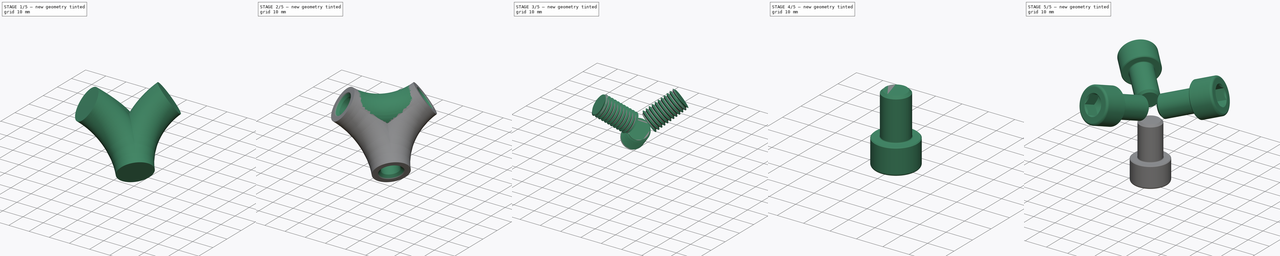
[diagram: build sequence overview — one tinted view per stage of 5, left to right]
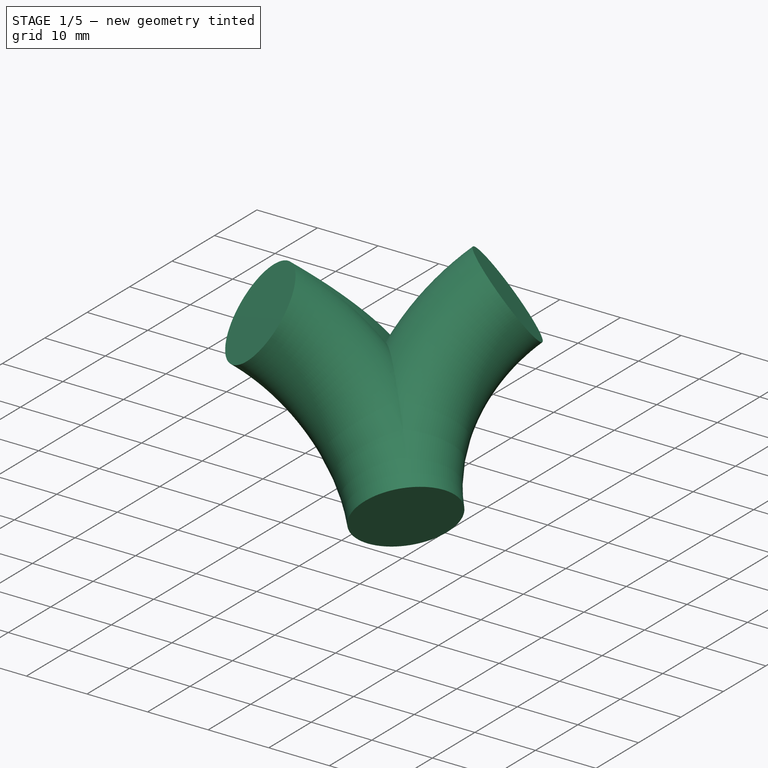
[diagram: stage 1 of 5 — iso view after this stage's code; geometry added in this stage tinted green]
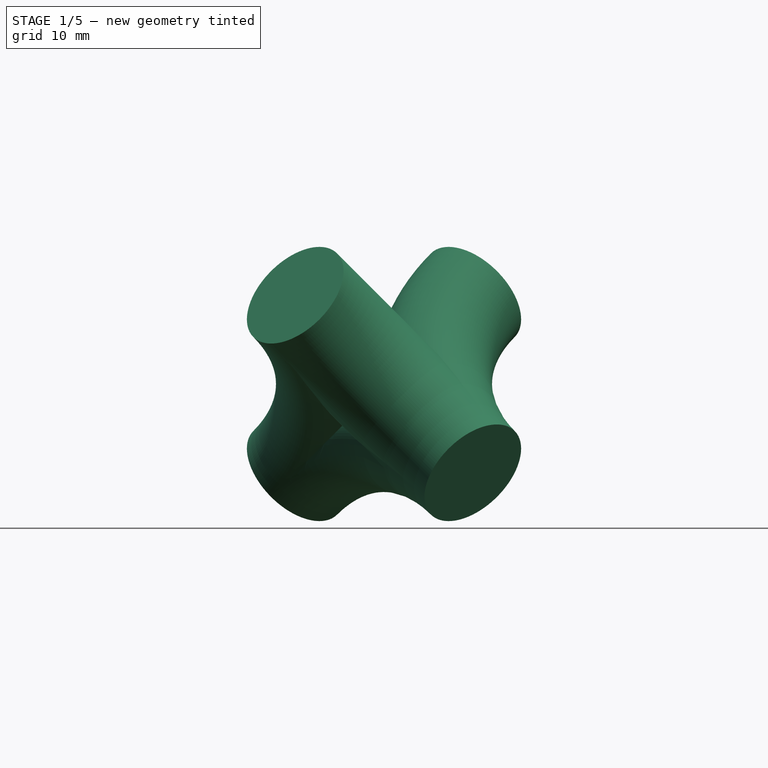
[diagram: stage 1 of 5 — front view after this stage's code; geometry added in this stage tinted green]
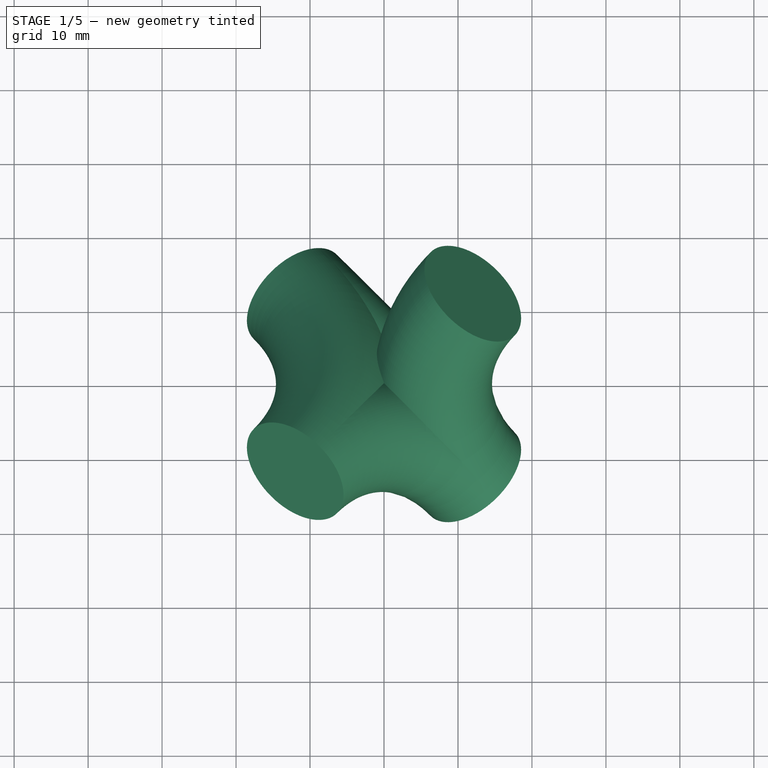
[diagram: stage 1 of 5 — top view after this stage's code; geometry added in this stage tinted green]
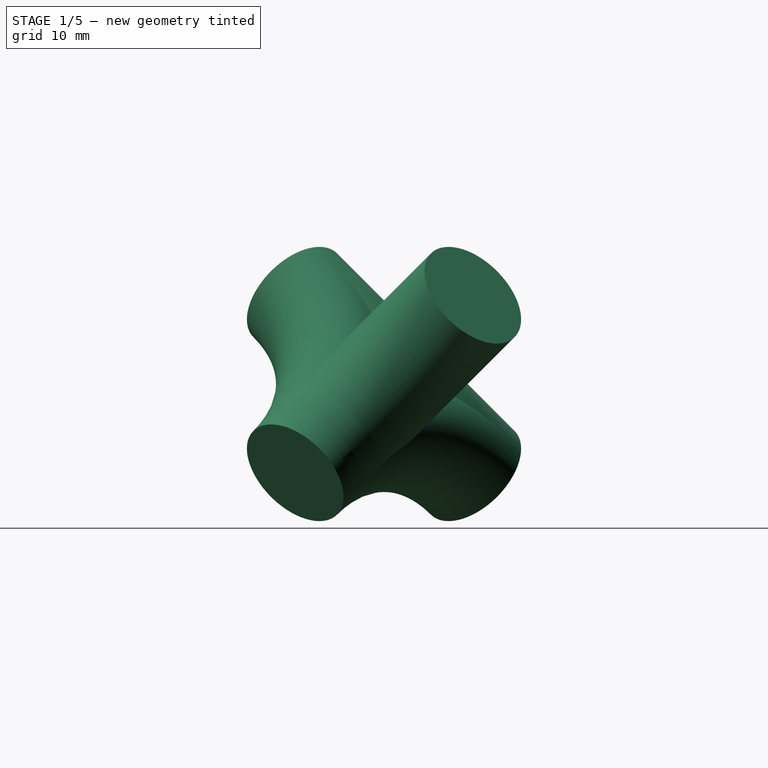
[diagram: stage 1 of 5 — right view after this stage's code; geometry added in this stage tinted green]
FCSTD DOCUMENT  (FreeCAD 0.20R25947 +3 (Git))
Label: Tetraederstern_mit-Gewinde
License: All rights reserved
LicenseURL: http://de.wikipedia.org/wiki/Alle_Rechte_vorbehalten
objects: Part::FeaturePython×8, PartDesign::Point×5, Sketcher::SketchObject×5, PartDesign::Plane×3, PartDesign::PolarPattern×3, PartDesign::Line×2, PartDesign::AdditivePipe×2, PartDesign::Hole×2, PartDesign::Body×1, Part::MultiFuse×1, Part::Cut×1
note: 37 computed .brp shape members not serialized (recipe doc carries the construction recipe); baked Part::Feature solids carry a one-line shape summary decoded from their .brp

FEATURE [PartDesign::Point] DatumPoint
  AttacherType = Attacher::AttachEnginePoint
  AttachmentOffset = pos=(12,12,12) rot=(0,0,1;0rad)
  MapMode = 32
  Placement = pos=(12,12,12) rot=(0,0,1;0rad)
  Support = -> [XY_Plane]
FEATURE [PartDesign::Point] DatumPoint001
  AttacherType = Attacher::AttachEnginePoint
  MapMode = 32
  Support = -> [XY_Plane]
FEATURE [PartDesign::Point] DatumPoint002
  AttacherType = Attacher::AttachEnginePoint
  AttachmentOffset = pos=(-12,-12,12) rot=(0,0,1;0rad)
  MapMode = 32
  Placement = pos=(-12,-12,12) rot=(0,0,1;0rad)
  Support = -> [XY_Plane]
FEATURE [PartDesign::Point] DatumPoint003
  AttacherType = Attacher::AttachEnginePoint
  AttachmentOffset = pos=(12,-12,-12) rot=(0,0,1;0rad)
  MapMode = 32
  Placement = pos=(12,-12,-12) rot=(0,0,1;0rad)
  Support = -> [XY_Plane]
FEATURE [PartDesign::Point] DatumPoint004
  AttacherType = Attacher::AttachEnginePoint
  AttachmentOffset = pos=(-12,12,-12) rot=(0,0,1;0rad)
  MapMode = 32
  Placement = pos=(-12,12,-12) rot=(0,0,1;0rad)
  Support = -> [XY_Plane]
FEATURE [PartDesign::Plane] DatumPlane002  label="DatumPlane Bogen 2"
  Length = 82.0464
  MapMode = 13
  Placement = pos=(-8,0,0) rot=(0,0.382683,0.92388;3.14159rad)
  ResizeMode = 0
  Support = -> [DatumPoint002,DatumPoint001,DatumPoint004]
  Width = 101.481
FEATURE [Sketcher::SketchObject] Sketch002  label="Bogen 2"
  ExternalGeometry = -> [DatumPoint002,DatumPoint004,DatumPoint001]
  FullyConstrained = false
  MapMode = 5
  Placement = pos=(-8,0,0) rot=(0,0.382683,0.92388;3.14159rad)
  Support = -> [DatumPlane002]
  sketch-geometry (2):
    g0: ArcOfCircle CenterX=28 CenterY=0 CenterZ=0 NormalX=0 NormalY=0 NormalZ=1 AngleXU=0 Radius=29.3939 StartAngle=2.52611 EndAngle=3.75707
    g1: LineSegment StartX=-8 StartY=0 StartZ=0 EndX=4 EndY=-16.9706 EndZ=0
  constraints (4):
    c: Coincident(g0,g-3)
    c: Coincident(g0,g-4)
    c: Coincident(g1,g-5)
    c: Tangent(g1,g0) = -1.5708
FEATURE [PartDesign::Line] DatumLine002  label="DatumLine Kreis"
  AttacherType = Attacher::AttachEngineLine
  Length = 20
  MapMode = 29
  Placement = pos=(-2.66667,2.66667,-2.66667) rot=(0.742906,0.307722,0.594473;1.21712rad)
  ResizeMode = 0
  Support = -> [Sketch002,DatumPoint001]
FEATURE [PartDesign::Plane] DatumPlane004  label="DatumPlane Kreis"
  Length = 113.96
  MapMode = 7
  Placement = pos=(-12,12,-12) rot=(-0.345235,0.833472,0.431437;3.49527rad)
  ResizeMode = 0
  Support = -> [DatumLine002,Sketch002]
  Width = 119.052
FEATURE [Sketcher::SketchObject] Sketch004  label="Kreis"
  FullyConstrained = false
  MapMode = 5
  Placement = pos=(-12,12,-12) rot=(-0.345235,0.833472,0.431437;3.49527rad)
  Support = -> [DatumPlane004]
  sketch-geometry (1):
    g0: Circle CenterX=0 CenterY=0 CenterZ=0 NormalX=0 NormalY=0 NormalZ=1 AngleXU=0 Radius=8
  constraints (2):
    c: Coincident(g0,g-1)
    c: Radius(g0) = 8
FEATURE [PartDesign::Plane] DatumPlane  label=" DatumPlane Bogen 1"
  Length = 108.994
  MapMode = 13
  Placement = pos=(0,0,-8) rot=(0.281085,0.678598,0.678598;2.59356rad)
  ResizeMode = 0
  Support = -> [Sketch002,DatumPoint001,DatumPoint003]
  Width = 69.623
FEATURE [Sketcher::SketchObject] Sketch005  label="Bogen 1"
  ExternalGeometry = -> [DatumPoint003,Sketch002,DatumPoint001]
  FullyConstrained = false
  MapMode = 5
  Placement = pos=(0,0,-8) rot=(0.281085,0.678598,0.678598;2.59356rad)
  Support = -> [DatumPlane]
  sketch-geometry (2):
    g0: ArcOfCircle CenterX=-3.986e-13 CenterY=-28 CenterZ=0 NormalX=0 NormalY=0 NormalZ=1 AngleXU=0 Radius=29.3939 StartAngle=0.955317 EndAngle=2.18628
    g1: LineSegment StartX=-16.9706 StartY=-4 StartZ=0 EndX=0 EndY=8 EndZ=0
  constraints (4):
    c: Coincident(g0,g-4)
    c: Coincident(g0,g-3)
    c: Coincident(g1,g-5)
    c: Tangent(g1,g0) = 1.5708
FEATURE [PartDesign::AdditivePipe] AdditivePipe
  AllowMultiFace = false
  AuxilleryCurvelinear = true
  AuxillerySpineTangent = false
  Binormal = (0,0,0)
  Mode = 0
  Outside = false
  Placement = pos=(-12,12,-12) rot=(-0.345235,0.833472,0.431437;3.49527rad)
  Profile = -> Sketch004
  Refine = true
  Spine = -> Sketch005 [Edge1]
  SpineTangent = false
  Transformation = 0
  Transition = 0
FEATURE [PartDesign::Line] DatumLine  label="Rotationsachse"
  AttacherType = Attacher::AttachEngineLine
  Length = 20
  MapMode = 29
  Placement = pos=(0,0,0) rot=(0.90627,0.375389,0.194316;2.26431rad)
  ResizeMode = 0
  Support = -> [DatumPoint001,DatumPoint003]
FEATURE [PartDesign::PolarPattern] PolarPattern
  Angle = 360
  Axis = -> DatumLine
  BaseFeature = -> AdditivePipe
  Occurrences = 3
  Originals = -> [AdditivePipe]
  Overlap = 0
  Placement = pos=(-12,12,-12) rot=(-0.345235,0.833472,0.431437;3.49527rad)
  Refine = true
FEATURE [PartDesign::AdditivePipe] AdditivePipe001
  AllowMultiFace = false
  AuxilleryCurvelinear = true
  AuxillerySpineTangent = false
  BaseFeature = -> PolarPattern
  Binormal = (0,0,0)
  Mode = 0
  Outside = false
  Placement = pos=(-12,12,-12) rot=(-0.345235,0.833472,0.431437;3.49527rad)
  Profile = -> Sketch004
  Refine = true
  Spine = -> Sketch002 [Edge1]
  SpineTangent = false
  Transformation = 0
  Transition = 0
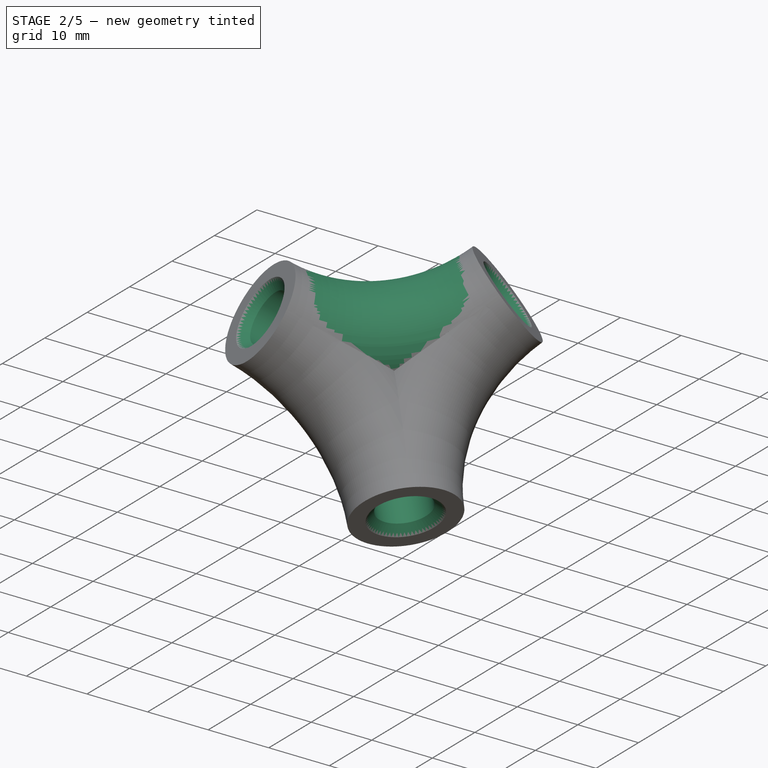
[diagram: stage 2 of 5 — iso view after this stage's code; geometry added in this stage tinted green]
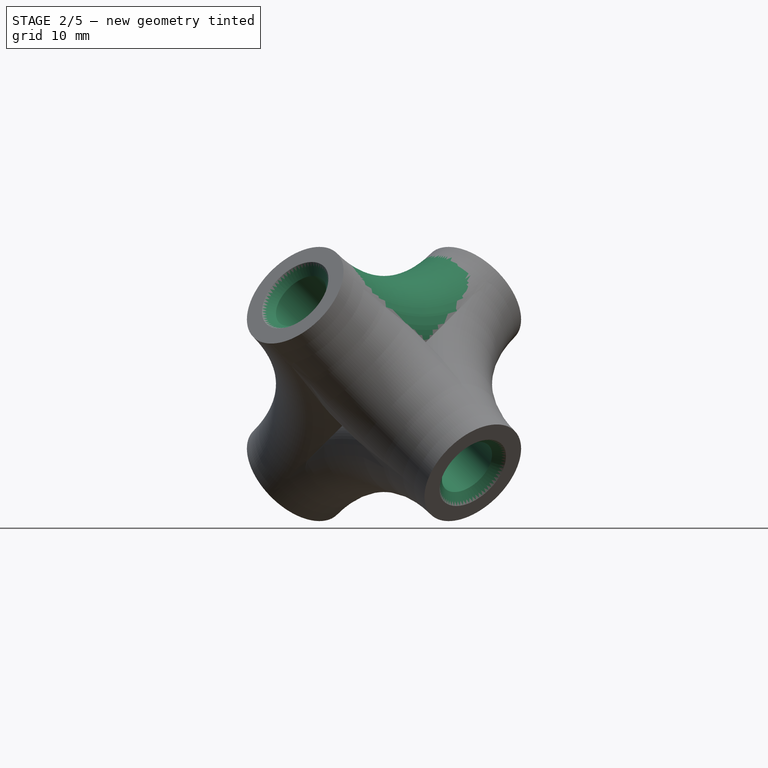
[diagram: stage 2 of 5 — front view after this stage's code; geometry added in this stage tinted green]
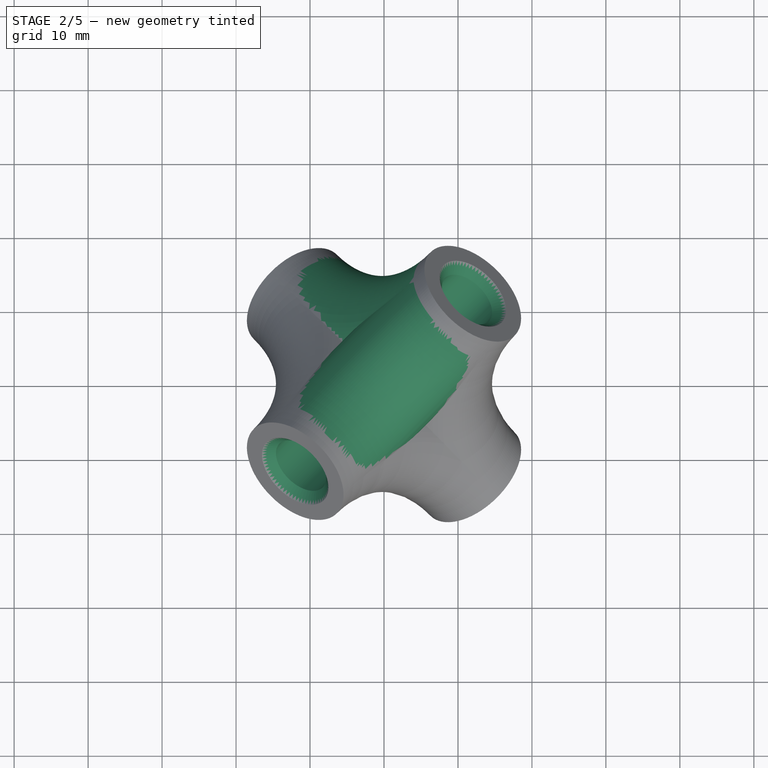
[diagram: stage 2 of 5 — top view after this stage's code; geometry added in this stage tinted green]
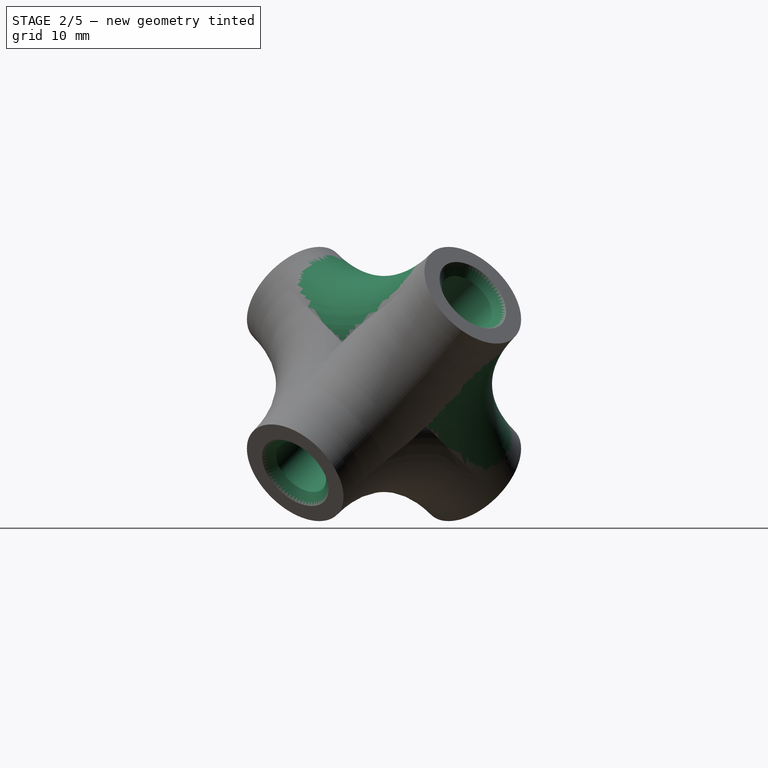
[diagram: stage 2 of 5 — right view after this stage's code; geometry added in this stage tinted green]
FEATURE [PartDesign::PolarPattern] PolarPattern001
  Angle = 360
  Axis = -> DatumLine
  BaseFeature = -> AdditivePipe001
  Occurrences = 3
  Originals = -> [AdditivePipe001]
  Overlap = 0
  Placement = pos=(-12,12,-12) rot=(-0.345235,0.833472,0.431437;3.49527rad)
  Refine = true
FEATURE [Sketcher::SketchObject] Sketch
  ExternalGeometry = -> [DatumPoint002]
  FullyConstrained = false
  MapMode = 5
  Placement = pos=(-28,-4,4) rot=(0.021675,-0.604574,0.796254;1.72627rad)
  Support = -> [PolarPattern001]
  sketch-geometry (1):
    g0: Circle CenterX=-3.70328 CenterY=-19.2428 CenterZ=0 NormalX=0 NormalY=0 NormalZ=1 AngleXU=0 Radius=3.32955
  constraints (1):
    c: Coincident(g0,g-3)
FEATURE [PartDesign::Hole] Hole
  AllowMultiFace = false
  BaseFeature = -> PolarPattern001
  CustomThreadClearance = 0
  Depth = 17.5
  DepthType = 0
  Diameter = 8.3
  DrillForDepth = false
  DrillPoint = 1
  DrillPointAngle = 118
  HoleCutCountersinkAngle = 90
  HoleCutCustomValues = false
  HoleCutDepth = 0
  HoleCutDiameter = 11
  HoleCutType = 2
  ModelThread = false
  Placement = pos=(-12,12,-12) rot=(-0.345235,0.833472,0.431437;3.49527rad)
  Profile = -> Sketch
  Refine = true
  Tapered = false
  TaperedAngle = 90
  ThreadClass = 0
  ThreadDepth = 17.5
  ThreadDepthType = 0
  ThreadDirection = 0
  ThreadFit = 0
  ThreadSize = 0
  ThreadType = 0
  Threaded = false
  UseCustomThreadClearance = false
FEATURE [PartDesign::PolarPattern] PolarPattern002
  Angle = 360
  Axis = -> DatumLine
  BaseFeature = -> Hole
  Occurrences = 3
  Originals = -> [Hole]
  Overlap = 0
  Placement = pos=(-12,12,-12) rot=(-0.345235,0.833472,0.431437;3.49527rad)
  Refine = true
FEATURE [Sketcher::SketchObject] Sketch006
  ExternalGeometry = -> [DatumLine]
  FullyConstrained = false
  MapMode = 5
  Placement = pos=(4,-4,-28) rot=(-0.345235,0.833472,-0.431437;2.78791rad)
  Support = -> [PolarPattern002]
  sketch-geometry (1):
    g0: Circle CenterX=0 CenterY=-19.5959 CenterZ=0 NormalX=0 NormalY=0 NormalZ=1 AngleXU=0 Radius=3.87954
  constraints (1):
    c: Coincident(g0,g-3)
FEATURE [PartDesign::Hole] Hole001
  AllowMultiFace = false
  BaseFeature = -> PolarPattern002
  CustomThreadClearance = 0
  Depth = 17.5
  DepthType = 0
  Diameter = 8.3
  DrillForDepth = false
  DrillPoint = 1
  DrillPointAngle = 118
  HoleCutCountersinkAngle = 90
  HoleCutCustomValues = false
  HoleCutDepth = 0
  HoleCutDiameter = 11
  HoleCutType = 2
  ModelThread = false
  Placement = pos=(-12,12,-12) rot=(-0.345235,0.833472,0.431437;3.49527rad)
  Profile = -> Sketch006
  Refine = true
  Tapered = false
  TaperedAngle = 90
  ThreadClass = 0
  ThreadDepth = 17.5
  ThreadDepthType = 0
  ThreadDirection = 0
  ThreadFit = 0
  ThreadSize = 0
  ThreadType = 0
  Threaded = false
  UseCustomThreadClearance = false
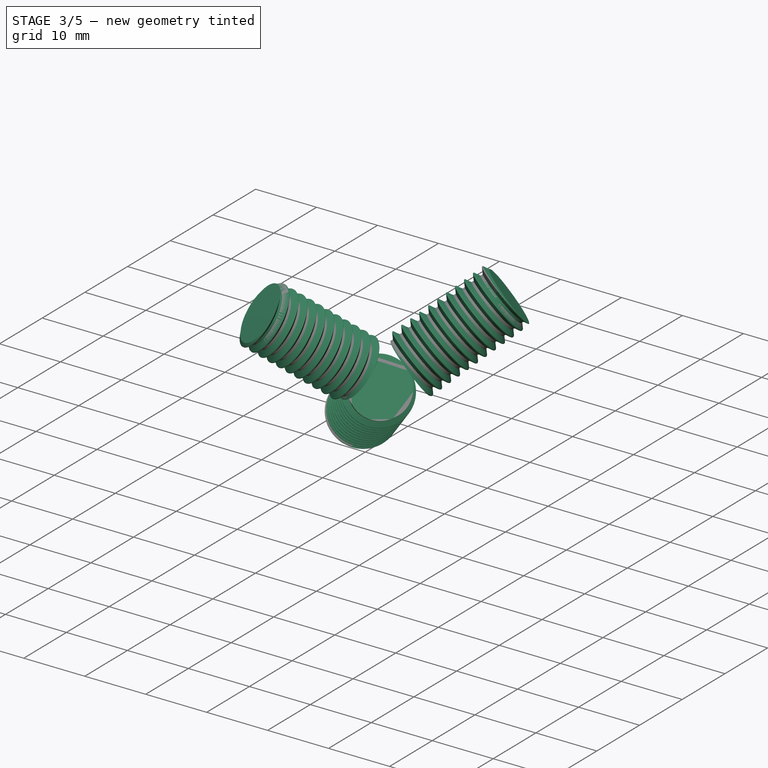
[diagram: stage 3 of 5 — iso view after this stage's code; geometry added in this stage tinted green]
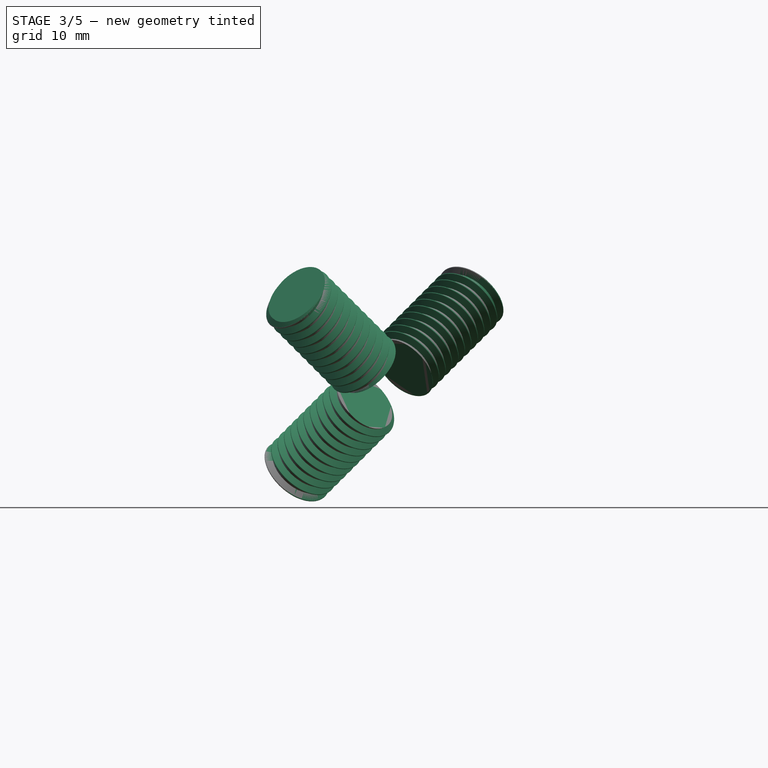
[diagram: stage 3 of 5 — front view after this stage's code; geometry added in this stage tinted green]
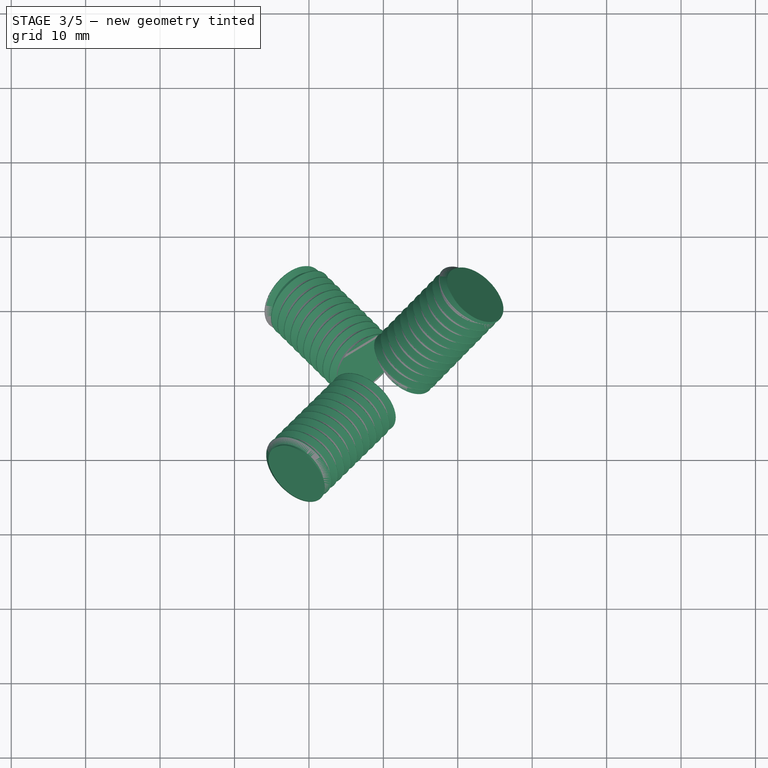
[diagram: stage 3 of 5 — top view after this stage's code; geometry added in this stage tinted green]
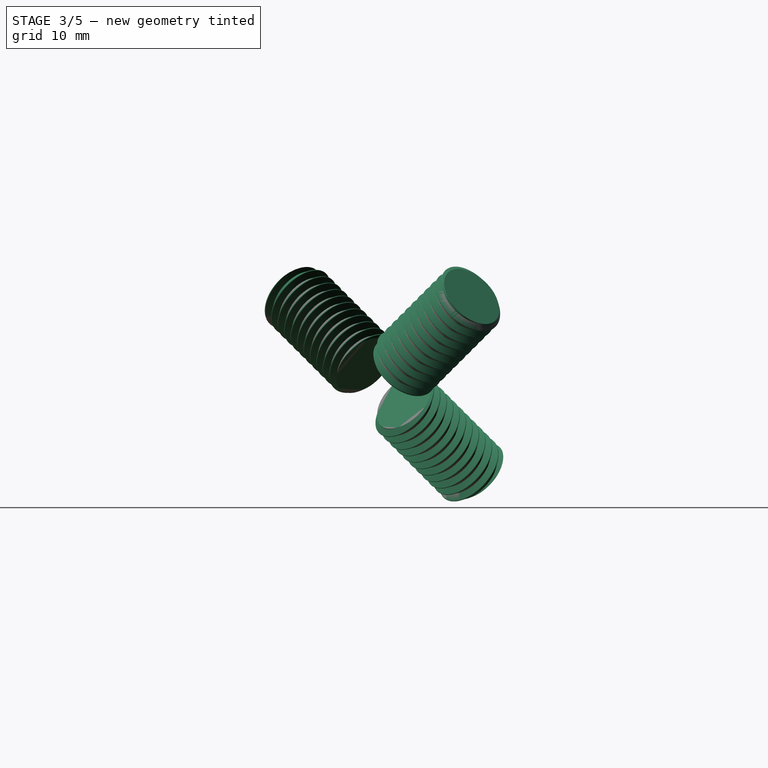
[diagram: stage 3 of 5 — right view after this stage's code; geometry added in this stage tinted green]
FEATURE [PartDesign::Body] Body
  Group = -> [DatumPoint,DatumPoint001,DatumPoint002,DatumPoint003,DatumPoint004,DatumPlane002,Sketch002,DatumLine002,DatumPlane004,Sketch004,DatumPlane,Sketch005,AdditivePipe,DatumLine,PolarPattern,AdditivePipe001,PolarPattern001,Sketch,Hole,PolarPattern002,Sketch006,Hole001]
  Origin = -> Origin
  Tip = -> Hole001
FEATURE [Part::FeaturePython] ScrewTap  label="M10x16.0-ScrewTap"  # Fasteners workbench fastener (typed FeaturePython)
  Placement = pos=(-12,-12,12) rot=(0.707107,-0.707107,0;0.955317rad)
  baseObject = -> Body [Edge38]
  diameter = 9
  diameterCustom = 6
  invert = false
  length = 16
  matchOuter = false
  offset = 0
  pitchCustom = 1
  thread = true
FEATURE [Part::FeaturePython] ScrewTap001  label="M10x16.0-ScrewTap"  # Fasteners workbench fastener (typed FeaturePython)
  Placement = pos=(12,12,12) rot=(-0.707107,0.707107,0;0.955317rad)
  baseObject = -> Body [Edge48]
  diameter = 9
  diameterCustom = 6
  invert = false
  length = 16
  matchOuter = false
  offset = 0
  pitchCustom = 1
  thread = true
FEATURE [Part::FeaturePython] ScrewTap003  label="M10x16.0-ScrewTap"  # Fasteners workbench fastener (typed FeaturePython)
  Placement = pos=(-12,12,-12) rot=(0.707107,0.707107,0;4.09691rad)
  baseObject = -> Body [Edge7]
  diameter = 9
  diameterCustom = 6
  invert = false
  length = 16
  matchOuter = false
  offset = 0
  pitchCustom = 1
  thread = true
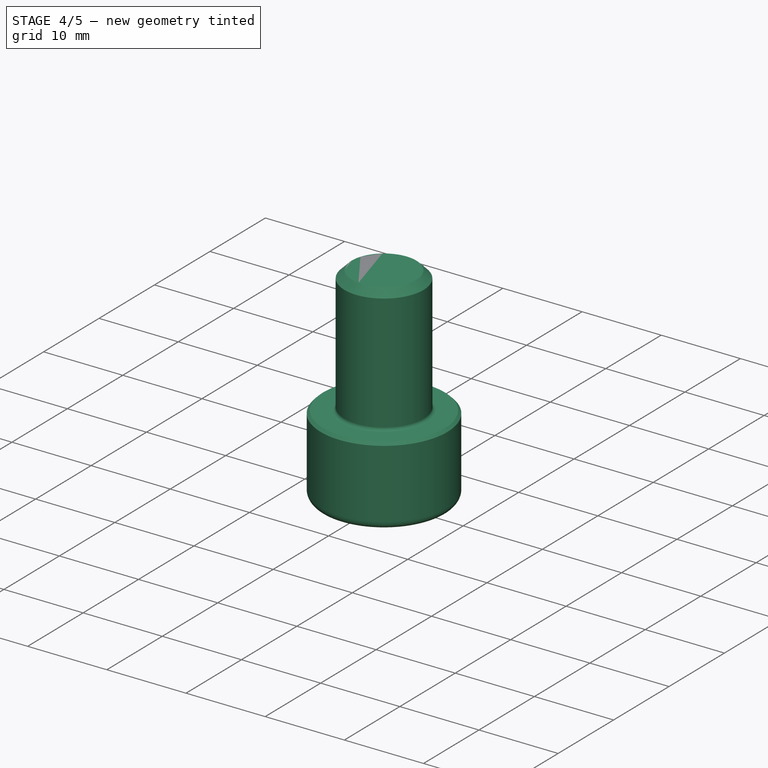
[diagram: stage 4 of 5 — iso view after this stage's code; geometry added in this stage tinted green]
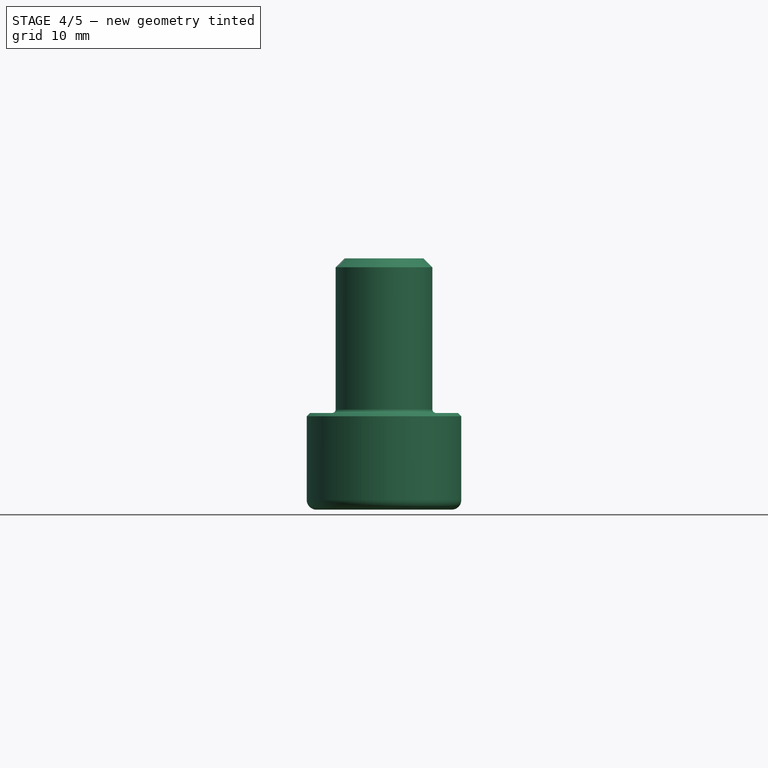
[diagram: stage 4 of 5 — front view after this stage's code; geometry added in this stage tinted green]
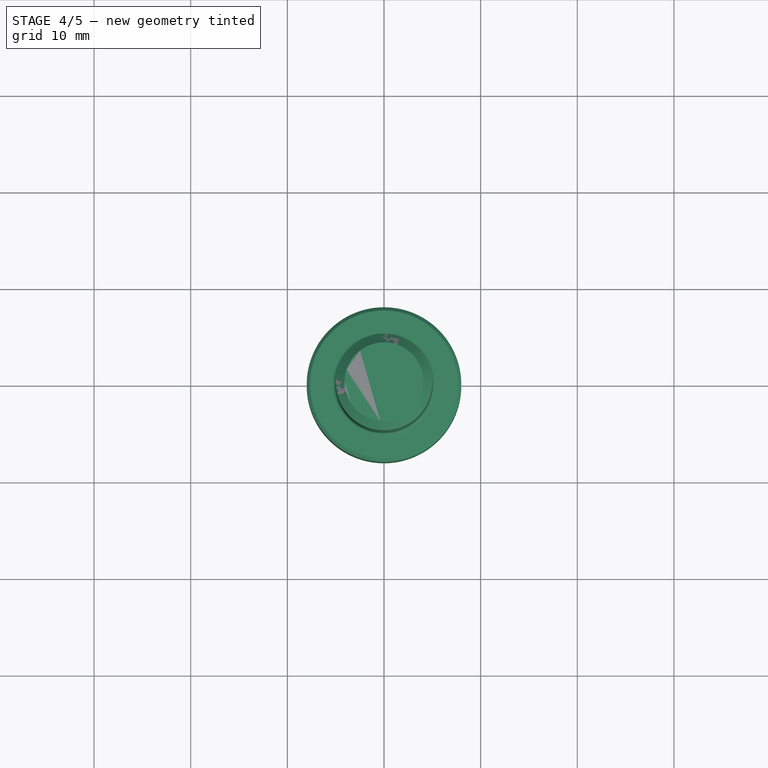
[diagram: stage 4 of 5 — top view after this stage's code; geometry added in this stage tinted green]
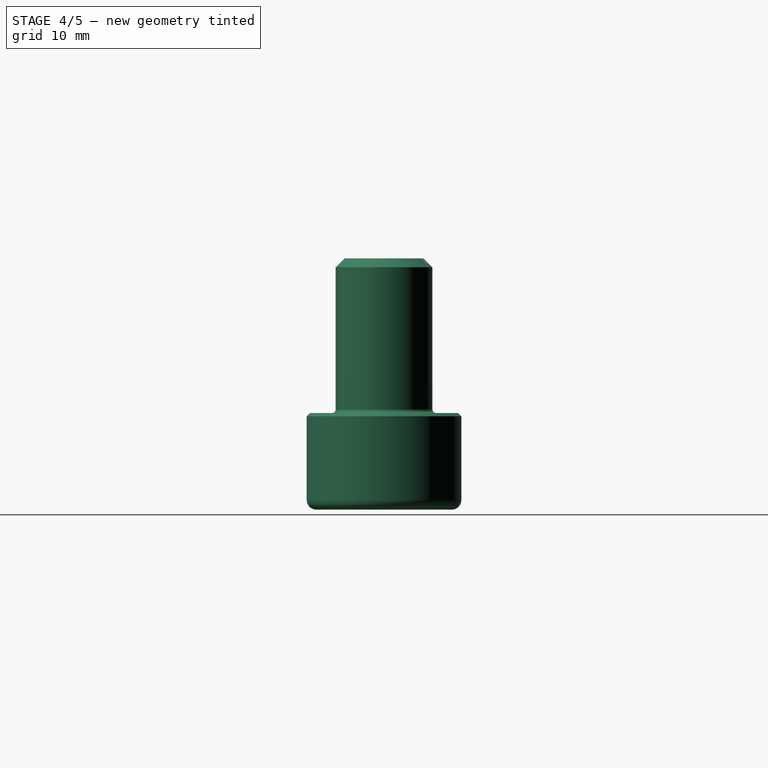
[diagram: stage 4 of 5 — right view after this stage's code; geometry added in this stage tinted green]
FEATURE [Part::FeaturePython] ScrewTap002  label="M10x16.0-ScrewTap"  # Fasteners workbench fastener (typed FeaturePython)
  Placement = pos=(12,-12,-12) rot=(0.707107,0.707107,0;2.18628rad)
  baseObject = -> Body [Edge51]
  diameter = 9
  diameterCustom = 6
  invert = false
  length = 16
  matchOuter = false
  offset = 0
  pitchCustom = 1
  thread = true
FEATURE [Part::MultiFuse] Fusion
  Refine = true
  Shapes = -> [ScrewTap,ScrewTap001,ScrewTap002,ScrewTap003]
FEATURE [Part::Cut] Cut
  Base = -> Body
  Placement = pos=(0,0,0) rot=(0.707107,0.707107,0;0.955317rad)
  Refine = true
  Tool = -> Fusion
  expr: .Placement.Rotation.Angle = acos(-1 / 3) / 2
FEATURE [Part::FeaturePython] Screw003  label="M10x16-Screw"  # Fasteners workbench fastener (typed FeaturePython)
  Placement = pos=(3.65e-13,-2.931e-13,-20.7846) rot=(-0.982996,0.183627,0;3.14159rad)
  baseObject = -> Cut [Edge48]
  diameter = 9
  invert = true
  length = 0
  lengthCustom = 16
  matchOuter = false
  offset = 0
  thread = false
  type = 34
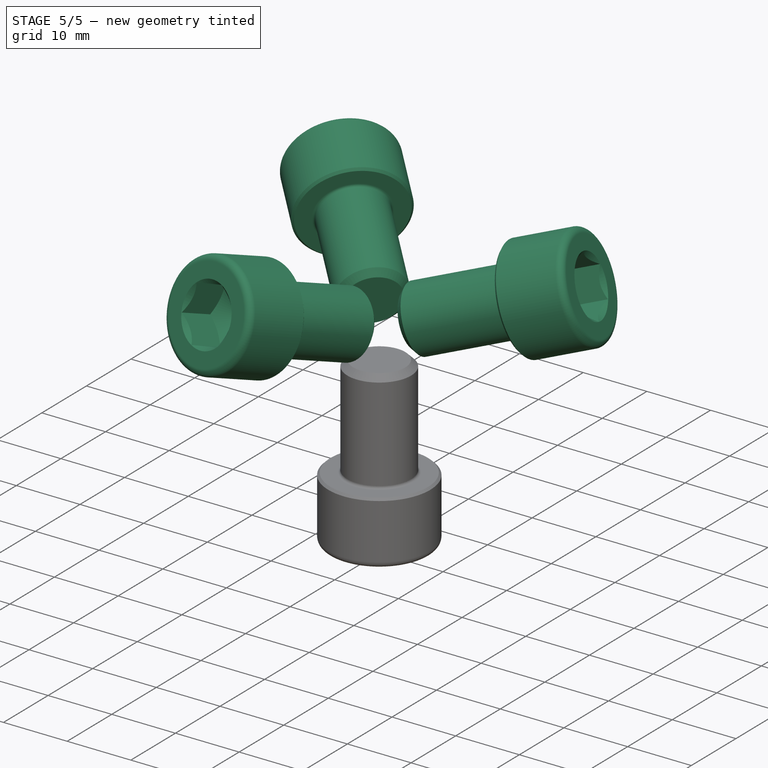
[diagram: stage 5 of 5 — iso view after this stage's code; geometry added in this stage tinted green]
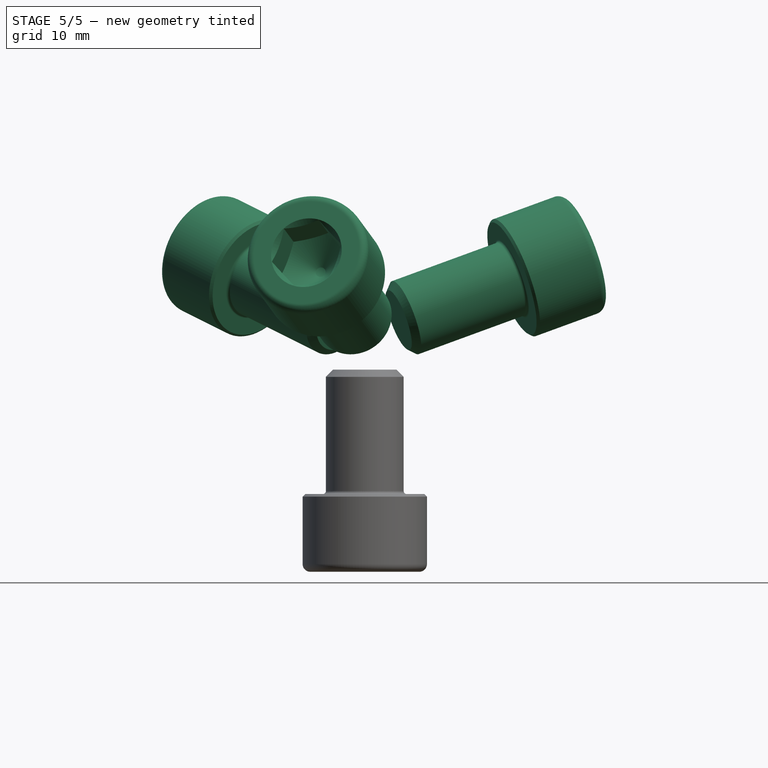
[diagram: stage 5 of 5 — front view after this stage's code; geometry added in this stage tinted green]
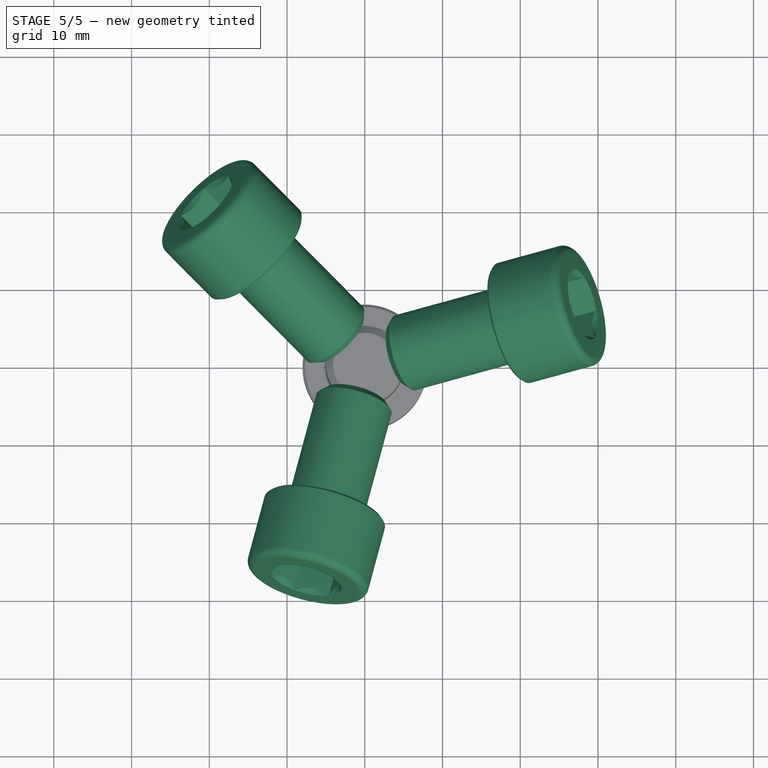
[diagram: stage 5 of 5 — top view after this stage's code; geometry added in this stage tinted green]
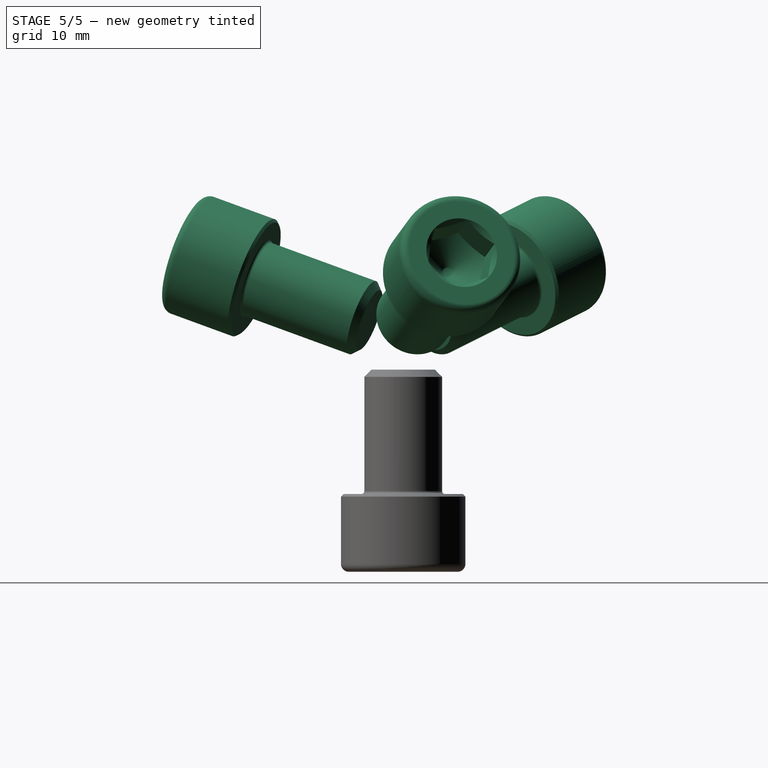
[diagram: stage 5 of 5 — right view after this stage's code; geometry added in this stage tinted green]
FEATURE [Part::FeaturePython] Screw  label="M10x16-Screw"  # Fasteners workbench fastener (typed FeaturePython)
  Placement = pos=(18.9282,5.0718,6.9282) rot=(-0.258819,0.965926,0;1.23096rad)
  baseObject = -> Cut [Edge41]
  diameter = 9
  invert = false
  length = 0
  lengthCustom = 16
  matchOuter = false
  offset = 0
  thread = false
  type = 34
FEATURE [Part::FeaturePython] Screw001  label="M10x16-Screw"  # Fasteners workbench fastener (typed FeaturePython)
  Placement = pos=(-5.0718,-18.9282,6.9282) rot=(0.965926,-0.258819,0;1.23096rad)
  baseObject = -> Cut [Edge39]
  diameter = 9
  invert = false
  length = 0
  lengthCustom = 16
  matchOuter = false
  offset = 0
  thread = false
  type = 34
FEATURE [Part::FeaturePython] Screw002  label="M10x16-Screw"  # Fasteners workbench fastener (typed FeaturePython)
  Placement = pos=(-13.8564,13.8564,6.9282) rot=(-0.707107,-0.707107,0;1.23096rad)
  baseObject = -> Cut [Edge1]
  diameter = 9
  invert = false
  length = 0
  lengthCustom = 16
  matchOuter = false
  offset = 0
  thread = false
  type = 34
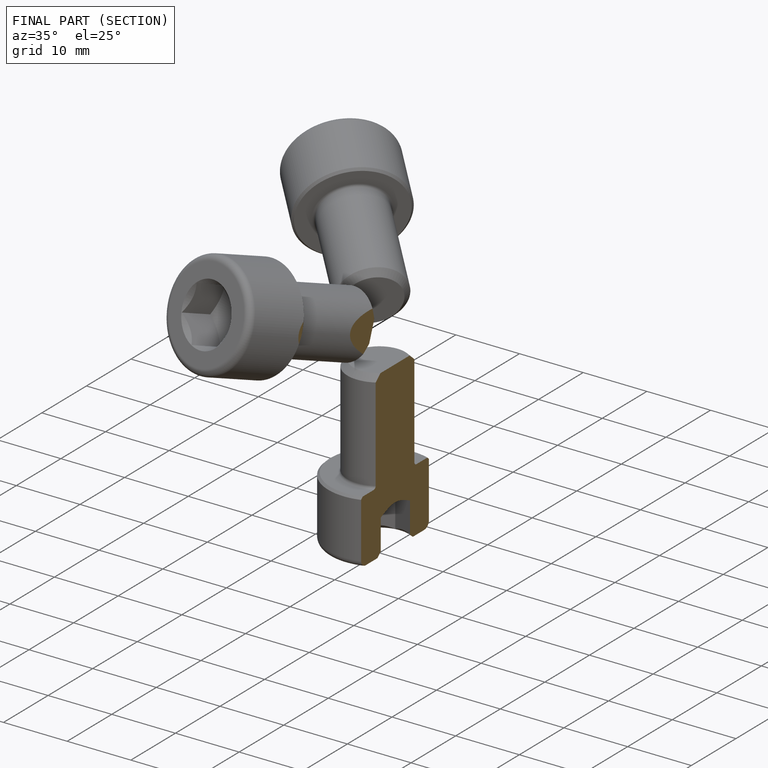
[diagram: finished part — half-section view (interior)]
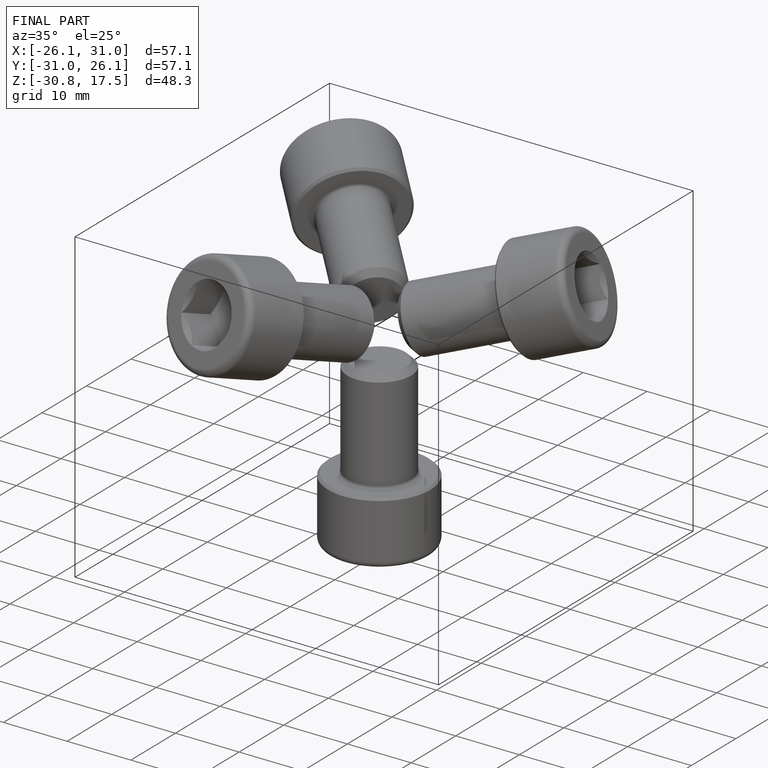
[diagram: finished part — iso view with bounding-box wireframe]
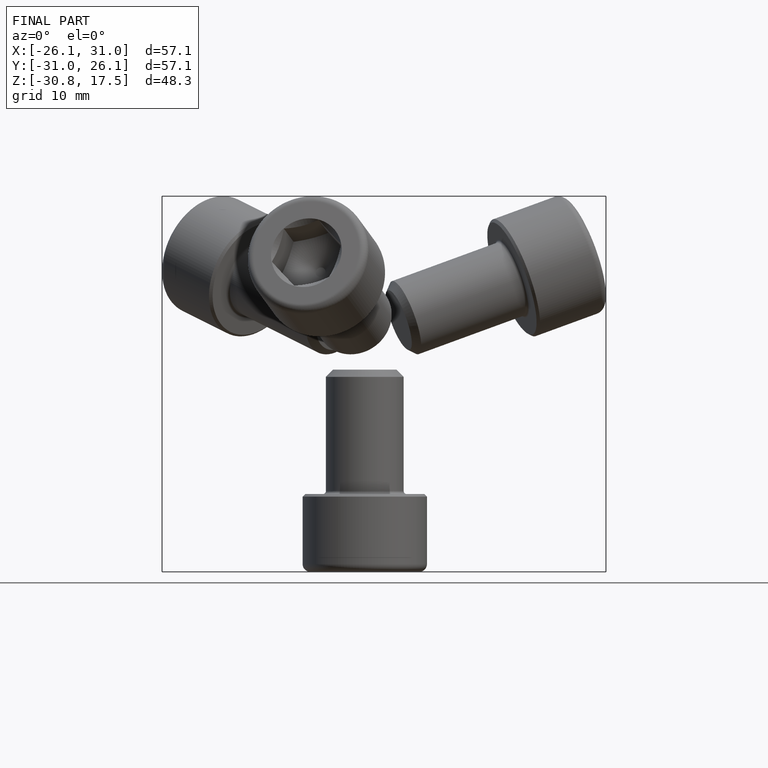
[diagram: finished part — front view with bounding-box wireframe]
